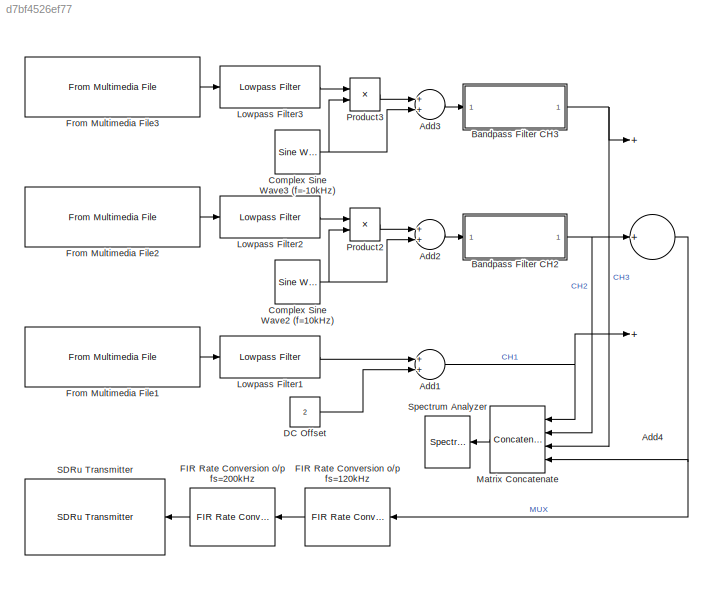
MODEL slx_d7bf4526ef77
KIND model
CONFIG AbsTol = auto
CONFIG EnableMultiTasking = off
CONFIG FixedStep = auto
CONFIG MaxStep = auto
CONFIG MinStep = auto
CONFIG RelTol = 1e-3
CONFIG SampleTimeConstraint = Unconstrained
CONFIG Solver = VariableStepAuto
CONFIG SolverName = VariableStepAuto
CONFIG StartTime = 0.0
CONFIG StopTime = inf
BLOCK [Sum] Add1
  InputSameDT = off
  OutDataTypeStr = Inherit: Inherit via internal rule
  Ports = [2, 1]
  SaturateOnIntegerOverflow = off
BLOCK [Sum] Add2
  InputSameDT = off
  OutDataTypeStr = Inherit: Inherit via internal rule
  Ports = [2, 1]
  SaturateOnIntegerOverflow = off
BLOCK [Sum] Add3
  InputSameDT = off
  OutDataTypeStr = Inherit: Inherit via internal rule
  Ports = [2, 1]
  SaturateOnIntegerOverflow = off
BLOCK [Sum] Add4
  InputSameDT = off
  Inputs = +++
  OutDataTypeStr = Inherit: Inherit via internal rule
  Ports = [3, 1]
  SaturateOnIntegerOverflow = off
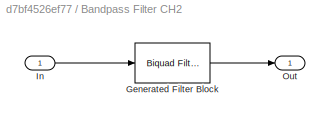
BLOCK [SubSystem] Bandpass Filter CH2
  CopyFcn = fdesignblkfcn(gcbh, {'CopyFcn'});
  DialogController = fdesignblkfcn
  InitFcn = fdesignblkfcn(gcbh, {'InitFcn'});
  Ports = [1, 1]
  RequestExecContextInheritance = off
  UserDataPersistent = on
BLOCK [Reference] Bandpass Filter CH2/Generated Filter Block  REF=dsparch4/Biquad Filter
  Ports = [1, 1]
  SourceBlock = dsparch4/Biquad Filter
  SourceProductBaseCode = DS
  SourceProductName = DSP System Toolbox
  SourceType = Biquad Filter
  Tag = BlockMethodSubSystem
  UserDataPersistent = on
BLOCK [Inport] Bandpass Filter CH2/In
  IconDisplay = Port number
BLOCK [Outport] Bandpass Filter CH2/Out
  IconDisplay = Port number
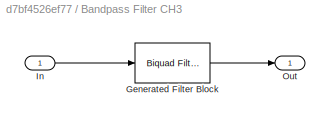
BLOCK [SubSystem] Bandpass Filter CH3
  CopyFcn = fdesignblkfcn(gcbh, {'CopyFcn'});
  DialogController = fdesignblkfcn
  InitFcn = fdesignblkfcn(gcbh, {'InitFcn'});
  Ports = [1, 1]
  RequestExecContextInheritance = off
  UserDataPersistent = on
BLOCK [Reference] Bandpass Filter CH3/Generated Filter Block  REF=dsparch4/Biquad Filter
  Ports = [1, 1]
  SourceBlock = dsparch4/Biquad Filter
  SourceProductBaseCode = DS
  SourceProductName = DSP System Toolbox
  SourceType = Biquad Filter
  Tag = BlockMethodSubSystem
  UserDataPersistent = on
BLOCK [Inport] Bandpass Filter CH3/In
  IconDisplay = Port number
BLOCK [Outport] Bandpass Filter CH3/Out
  IconDisplay = Port number
BLOCK [Reference] Complex Sine Wave2 (f=10kHz)  REF=dspsrcs4/Sine Wave
  Ports = [0, 1]
  SourceBlock = dspsrcs4/Sine Wave
  SourceProductBaseCode = DS
  SourceProductName = DSP System Toolbox
  SourceType = Sine Wave
BLOCK [Reference] Complex Sine Wave3 (f=-10kHz)  REF=dspsrcs4/Sine Wave
  Ports = [0, 1]
  SourceBlock = dspsrcs4/Sine Wave
  SourceProductBaseCode = DS
  SourceProductName = DSP System Toolbox
  SourceType = Sine Wave
BLOCK [Constant] DC Offset
  Value = 2
BLOCK [Reference] FIR Rate Conversion o//p fs=120kHz  REF=dspmlti4/FIR Rate
Conversion
  Ports = [1, 1]
  SourceBlock = dspmlti4/FIR Rate\nConversion
  SourceProductBaseCode = DS
  SourceProductName = DSP System Toolbox
  SourceType = FIR Rate Conversion
BLOCK [Reference] FIR Rate Conversion o//p fs=200kHz  REF=dspmlti4/FIR Rate
Conversion
  Ports = [1, 1]
  SourceBlock = dspmlti4/FIR Rate\nConversion
  SourceProductBaseCode = DS
  SourceProductName = DSP System Toolbox
  SourceType = FIR Rate Conversion
BLOCK [Reference] From Multimedia File1  REF=dspvision/From Multimedia File
  Ports = [0, 1]
  SourceBlock = dspvision/From Multimedia File
  SourceProductBaseCode = VP
  SourceProductName = Computer Vision System Toolbox
  SourceType = From Multimedia File
BLOCK [Reference] From Multimedia File2  REF=dspvision/From Multimedia File
  Ports = [0, 1]
  SourceBlock = dspvision/From Multimedia File
  SourceProductBaseCode = VP
  SourceProductName = Computer Vision System Toolbox
  SourceType = From Multimedia File
BLOCK [Reference] From Multimedia File3  REF=dspvision/From Multimedia File
  Ports = [0, 1]
  SourceBlock = dspvision/From Multimedia File
  SourceProductBaseCode = VP
  SourceProductName = Computer Vision System Toolbox
  SourceType = From Multimedia File
BLOCK [Reference] Lowpass Filter1  REF=dspfdesign/Lowpass Filter
  Ports = [1, 1]
  SourceBlock = dspfdesign/Lowpass Filter
  SourceProductBaseCode = DS
  SourceProductName = DSP System Toolbox
  SourceType = dsp.LowpassFilter
BLOCK [Reference] Lowpass Filter2  REF=dspfdesign/Lowpass Filter
  Ports = [1, 1]
  SourceBlock = dspfdesign/Lowpass Filter
  SourceProductBaseCode = DS
  SourceProductName = DSP System Toolbox
  SourceType = dsp.LowpassFilter
BLOCK [Reference] Lowpass Filter3  REF=dspfdesign/Lowpass Filter
  Ports = [1, 1]
  SourceBlock = dspfdesign/Lowpass Filter
  SourceProductBaseCode = DS
  SourceProductName = DSP System Toolbox
  SourceType = dsp.LowpassFilter
BLOCK [Concatenate] Matrix Concatenate
  ConcatenateDimension = 2
  Mode = Multidimensional array
  NumInputs = 4
  Ports = [4, 1]
BLOCK [Product] Product2
  InputSameDT = off
  OutDataTypeStr = Inherit: Inherit via internal rule
  Ports = [2, 1]
  RndMeth = Floor
  SaturateOnIntegerOverflow = off
BLOCK [Product] Product3
  InputSameDT = off
  OutDataTypeStr = Inherit: Inherit via internal rule
  Ports = [2, 1]
  RndMeth = Floor
  SaturateOnIntegerOverflow = off
BLOCK [Reference] SDRu Transmitter  REF=commsdrhw_v2/SDRu Transmitter
  Ports = [1]
  SourceBlock = commsdrhw_v2/SDRu Transmitter
  SourceProductBaseCode = USRP
  SourceProductName = Communications System Toolbox Support Package for USRP(R) Radio
  SourceType = SDRu Transmitter
BLOCK [SpectrumAnalyzer] Spectrum Analyzer
  Ports = [1]
  ScopeSpecificationString = spbscopes.SpectrumAnalyzerBlockCfg('CurrentConfiguration', extmgr.ConfigurationSet(extmgr.Configuration('Core','General UI',true,'ShowMainToolbar',false,'ShowStatusbar',false,'FigureColor',[1 1 1]),extmgr.Configuration('Core','Source UI',true),extmgr.Configuration('Sources','WiredSimulink',true),extmgr.Configuration('Sources','SimulinkEvent',false),extmgr.Configuration('Sources','Simulink',false),...<+3120ch>
NET Add1:1 -> Add4:3, Matrix Concatenate:1
LINE Add2:1 -> Bandpass Filter CH2:1
LINE Add3:1 -> Bandpass Filter CH3:1
NET Add4:1 -> FIR Rate Conversion o//p fs=120kHz:1, Matrix Concatenate:4
NET Bandpass Filter CH2:1 -> Add4:2, Matrix Concatenate:2
NET Bandpass Filter CH3:1 -> Add4:1, Matrix Concatenate:3
NET Complex Sine Wave2 (f=10kHz):1 -> Add2:2, Product2:2
NET Complex Sine Wave3 (f=-10kHz):1 -> Add3:2, Product3:2
LINE DC Offset:1 -> Add1:2
LINE FIR Rate Conversion o//p fs=120kHz:1 -> FIR Rate Conversion o//p fs=200kHz:1
LINE FIR Rate Conversion o//p fs=200kHz:1 -> SDRu Transmitter:1
LINE From Multimedia File1:1 -> Lowpass Filter1:1
LINE From Multimedia File2:1 -> Lowpass Filter2:1
LINE From Multimedia File3:1 -> Lowpass Filter3:1
LINE Lowpass Filter1:1 -> Add1:1
LINE Lowpass Filter2:1 -> Product2:1
LINE Lowpass Filter3:1 -> Product3:1
LINE Matrix Concatenate:1 -> Spectrum Analyzer:1
LINE Product2:1 -> Add2:1
LINE Product3:1 -> Add3:1
note: NET lines group one-source signal fan-out (src -> all destinations, sorted); 1:1 wires keep LINE
